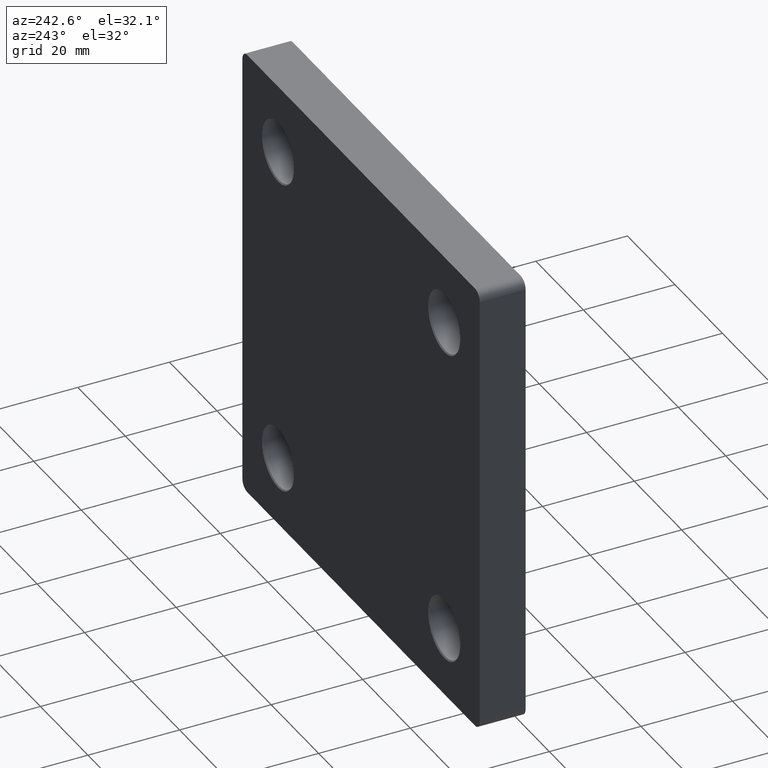
[diagram: clean part render]
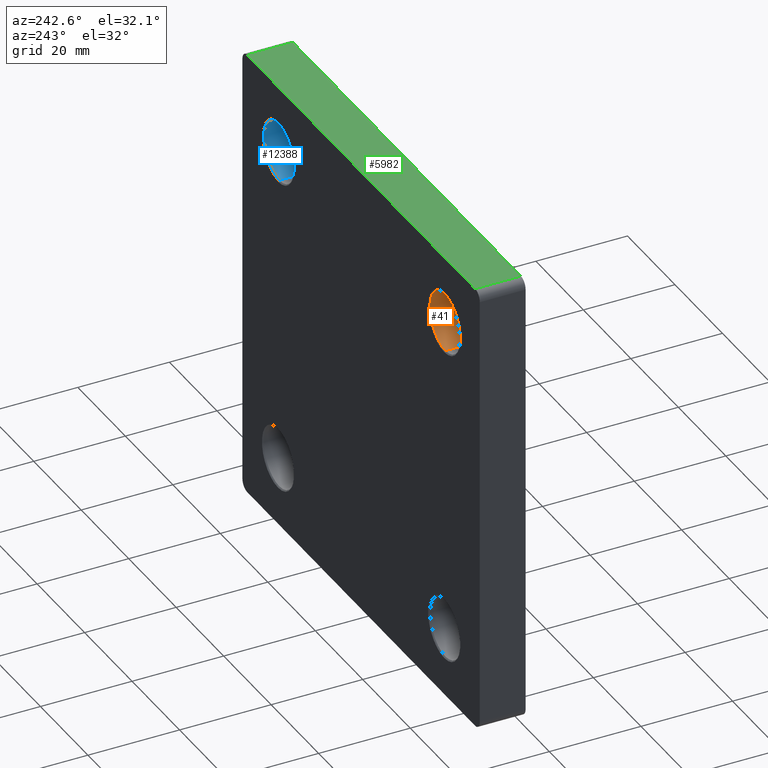
[diagram: same view with three faces highlighted in distinct colors, each labeled with its STEP entity id]
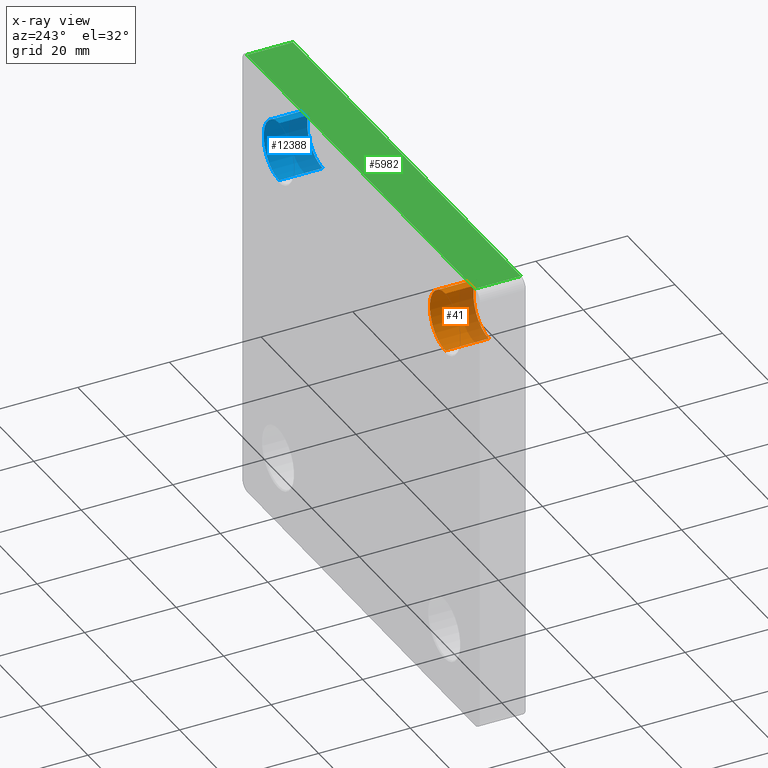
[diagram: x-ray of the same camera — body ghosted, the three highlighted faces saturated]
A machine part, auxiliary view with three faces highlighted in distinct colors.
The next image is the same camera in x-ray (body ghosted, the three faces saturated) — at least one of them is partly hidden behind the body in this view.
Their STEP definitions:

[orange] entity #41 — the highlighted cylindrical surface (edge-blend (fillet) strip) has radius 6.5 mm, axis along (-0, 1, -0).
#41 = ADVANCED_FACE ( 'NONE', ( #11231 ), #10542, .F. ) ;
#104 = DIRECTION ( 'NONE',  ( 0.000000000000000000, 0.000000000000000000, 1.000000000000000000 ) ) ;
#168 = DIRECTION ( 'NONE',  ( 0.000000000000000000, 0.000000000000000000, 1.000000000000000000 ) ) ;
#371 = VECTOR ( 'NONE', #12087, 1000.000000000000000 ) ;
#849 = CARTESIAN_POINT ( 'NONE',  ( -35.00000000000000000, 9.750000000000010658, 28.50000000000000355 ) ) ;
#955 = EDGE_CURVE ( 'NONE', #9684, #6740, #7457, .T. ) ;
#957 = AXIS2_PLACEMENT_3D ( 'NONE', #4050, #13995, #104 ) ;
#2308 = CIRCLE ( 'NONE', #5359, 6.499999999999999112 ) ;
#2424 = AXIS2_PLACEMENT_3D ( 'NONE', #11998, #4344, #4386 ) ;
#4050 = CARTESIAN_POINT ( 'NONE',  ( -35.00000000000000000, 0.000000000000000000, 35.00000000000000000 ) ) ;
#4344 = DIRECTION ( 'NONE',  ( 0.000000000000000000, 1.000000000000000000, 0.000000000000000000 ) ) ;
#4386 = DIRECTION ( 'NONE',  ( 0.000000000000000000, 0.000000000000000000, 1.000000000000000000 ) ) ;
#4779 = EDGE_CURVE ( 'NONE', #6498, #10920, #2308, .T. ) ;
#5051 = EDGE_CURVE ( 'NONE', #6498, #6740, #12167, .T. ) ;
#5159 = DIRECTION ( 'NONE',  ( -0.000000000000000000, 1.000000000000000000, -0.000000000000000000 ) ) ;
#5359 = AXIS2_PLACEMENT_3D ( 'NONE', #6753, #9826, #168 ) ;
#5623 = CARTESIAN_POINT ( 'NONE',  ( -35.00000000000000000, 9.750000000000010658, 41.50000000000000000 ) ) ;
#6401 = VECTOR ( 'NONE', #5159, 1000.000000000000000 ) ;
#6498 = VERTEX_POINT ( 'NONE', #13114 ) ;
#6556 = CARTESIAN_POINT ( 'NONE',  ( -35.00000000000000000, 0.000000000000000000, 41.50000000000000000 ) ) ;
#6740 = VERTEX_POINT ( 'NONE', #849 ) ;
#6753 = CARTESIAN_POINT ( 'NONE',  ( -35.00000000000000000, 0.2499999999999854838, 35.00000000000000000 ) ) ;
#7457 = CIRCLE ( 'NONE', #2424, 6.499999999999999112 ) ;
#8233 = ORIENTED_EDGE ( 'NONE', *, *, #5051, .F. ) ;
#8263 = EDGE_CURVE ( 'NONE', #10920, #9684, #10406, .T. ) ;
#8383 = CARTESIAN_POINT ( 'NONE',  ( -35.00000000000000000, 0.000000000000000000, 28.50000000000000355 ) ) ;
#9011 = EDGE_LOOP ( 'NONE', ( #8233, #9645, #12482, #11327 ) ) ;
#9645 = ORIENTED_EDGE ( 'NONE', *, *, #4779, .T. ) ;
#9684 = VERTEX_POINT ( 'NONE', #5623 ) ;
#9826 = DIRECTION ( 'NONE',  ( -0.000000000000000000, -1.000000000000000000, -0.000000000000000000 ) ) ;
#10270 = CARTESIAN_POINT ( 'NONE',  ( -35.00000000000000000, 0.2499999999999854838, 41.50000000000000000 ) ) ;
#10406 = LINE ( 'NONE', #6556, #371 ) ;
#10542 = CYLINDRICAL_SURFACE ( 'NONE', #957, 6.499999999999999112 ) ;
#10920 = VERTEX_POINT ( 'NONE', #10270 ) ;
#11231 = FACE_OUTER_BOUND ( 'NONE', #9011, .T. ) ;
#11327 = ORIENTED_EDGE ( 'NONE', *, *, #955, .T. ) ;
#11998 = CARTESIAN_POINT ( 'NONE',  ( -35.00000000000000000, 9.750000000000010658, 35.00000000000000000 ) ) ;
#12087 = DIRECTION ( 'NONE',  ( -0.000000000000000000, 1.000000000000000000, -0.000000000000000000 ) ) ;
#12167 = LINE ( 'NONE', #8383, #6401 ) ;
#12482 = ORIENTED_EDGE ( 'NONE', *, *, #8263, .T. ) ;
#13114 = CARTESIAN_POINT ( 'NONE',  ( -35.00000000000000000, 0.2499999999999854838, 28.50000000000000355 ) ) ;
#13995 = DIRECTION ( 'NONE',  ( -0.000000000000000000, 1.000000000000000000, -0.000000000000000000 ) ) ;

[blue] entity #12388 — the highlighted cylindrical surface (edge-blend (fillet) strip) has radius 6.5 mm, axis along (-0, 1, -0).
#105 = FACE_OUTER_BOUND ( 'NONE', #747, .T. ) ;
#135 = CIRCLE ( 'NONE', #12557, 6.499999999999999112 ) ;
#178 = CARTESIAN_POINT ( 'NONE',  ( 35.00000000000000000, 0.2499999999999854838, 41.50000000000000000 ) ) ;
#747 = EDGE_LOOP ( 'NONE', ( #4492, #4060, #2662, #10585 ) ) ;
#1208 = DIRECTION ( 'NONE',  ( 0.000000000000000000, 0.000000000000000000, 1.000000000000000000 ) ) ;
#1461 = DIRECTION ( 'NONE',  ( -0.000000000000000000, 1.000000000000000000, -0.000000000000000000 ) ) ;
#2483 = EDGE_CURVE ( 'NONE', #11485, #2787, #4729, .T. ) ;
#2662 = ORIENTED_EDGE ( 'NONE', *, *, #3304, .T. ) ;
#2787 = VERTEX_POINT ( 'NONE', #178 ) ;
#3268 = CARTESIAN_POINT ( 'NONE',  ( 35.00000000000000000, 0.000000000000000000, 28.50000000000000355 ) ) ;
#3295 = CARTESIAN_POINT ( 'NONE',  ( 35.00000000000000000, 9.750000000000010658, 28.50000000000000355 ) ) ;
#3304 = EDGE_CURVE ( 'NONE', #2787, #11474, #5579, .T. ) ;
#3961 = LINE ( 'NONE', #3268, #9565 ) ;
#4060 = ORIENTED_EDGE ( 'NONE', *, *, #2483, .T. ) ;
#4492 = ORIENTED_EDGE ( 'NONE', *, *, #7056, .F. ) ;
#4556 = CARTESIAN_POINT ( 'NONE',  ( 35.00000000000000000, 9.750000000000010658, 41.50000000000000000 ) ) ;
#4597 = DIRECTION ( 'NONE',  ( -0.000000000000000000, 1.000000000000000000, -0.000000000000000000 ) ) ;
#4729 = CIRCLE ( 'NONE', #11267, 6.499999999999999112 ) ;
#5099 = VERTEX_POINT ( 'NONE', #3295 ) ;
#5542 = DIRECTION ( 'NONE',  ( -0.000000000000000000, -1.000000000000000000, -0.000000000000000000 ) ) ;
#5579 = LINE ( 'NONE', #12093, #10318 ) ;
#6421 = DIRECTION ( 'NONE',  ( 0.000000000000000000, 1.000000000000000000, 0.000000000000000000 ) ) ;
#6907 = CYLINDRICAL_SURFACE ( 'NONE', #8525, 6.499999999999999112 ) ;
#7056 = EDGE_CURVE ( 'NONE', #11485, #5099, #3961, .T. ) ;
#7751 = CARTESIAN_POINT ( 'NONE',  ( 35.00000000000000000, 0.2499999999999854838, 35.00000000000000000 ) ) ;
#7781 = DIRECTION ( 'NONE',  ( -0.000000000000000000, 1.000000000000000000, -0.000000000000000000 ) ) ;
#8253 = DIRECTION ( 'NONE',  ( 0.000000000000000000, 0.000000000000000000, 1.000000000000000000 ) ) ;
#8525 = AXIS2_PLACEMENT_3D ( 'NONE', #13335, #1461, #8253 ) ;
#8635 = CARTESIAN_POINT ( 'NONE',  ( 35.00000000000000000, 9.750000000000010658, 35.00000000000000000 ) ) ;
#9565 = VECTOR ( 'NONE', #7781, 1000.000000000000000 ) ;
#9678 = DIRECTION ( 'NONE',  ( 0.000000000000000000, 0.000000000000000000, 1.000000000000000000 ) ) ;
#10078 = CARTESIAN_POINT ( 'NONE',  ( 35.00000000000000000, 0.2499999999999854838, 28.50000000000000355 ) ) ;
#10318 = VECTOR ( 'NONE', #4597, 1000.000000000000000 ) ;
#10585 = ORIENTED_EDGE ( 'NONE', *, *, #12128, .T. ) ;
#11267 = AXIS2_PLACEMENT_3D ( 'NONE', #7751, #5542, #1208 ) ;
#11474 = VERTEX_POINT ( 'NONE', #4556 ) ;
#11485 = VERTEX_POINT ( 'NONE', #10078 ) ;
#12093 = CARTESIAN_POINT ( 'NONE',  ( 35.00000000000000000, 0.000000000000000000, 41.50000000000000000 ) ) ;
#12128 = EDGE_CURVE ( 'NONE', #11474, #5099, #135, .T. ) ;
#12388 = ADVANCED_FACE ( 'NONE', ( #105 ), #6907, .F. ) ;
#12557 = AXIS2_PLACEMENT_3D ( 'NONE', #8635, #6421, #9678 ) ;
#13335 = CARTESIAN_POINT ( 'NONE',  ( 35.00000000000000000, 0.000000000000000000, 35.00000000000000000 ) ) ;

[green] entity #5982 — the highlighted planar face has unit normal (0, 0, -1).
#1164 = VECTOR ( 'NONE', #13010, 1000.000000000000000 ) ;
#1337 = DIRECTION ( 'NONE',  ( 0.000000000000000000, -1.000000000000000000, 0.000000000000000000 ) ) ;
#1558 = LINE ( 'NONE', #10983, #7850 ) ;
#2127 = EDGE_CURVE ( 'NONE', #3451, #2915, #7444, .T. ) ;
#2183 = CARTESIAN_POINT ( 'NONE',  ( -47.99999999999998579, 0.000000000000000000, 50.00000000000000711 ) ) ;
#2389 = CARTESIAN_POINT ( 'NONE',  ( -47.99999999999998579, 10.00000000000000000, 50.00000000000000711 ) ) ;
#2854 = ORIENTED_EDGE ( 'NONE', *, *, #2127, .T. ) ;
#2864 = VECTOR ( 'NONE', #1337, 1000.000000000000000 ) ;
#2915 = VERTEX_POINT ( 'NONE', #13480 ) ;
#3126 = PLANE ( 'NONE',  #11628 ) ;
#3451 = VERTEX_POINT ( 'NONE', #10335 ) ;
#3569 = CARTESIAN_POINT ( 'NONE',  ( -49.99999999999998579, 10.00000000000000000, 50.00000000000000711 ) ) ;
#3636 = FACE_OUTER_BOUND ( 'NONE', #9887, .T. ) ;
#5089 = DIRECTION ( 'NONE',  ( 0.000000000000000000, 0.000000000000000000, -1.000000000000000000 ) ) ;
#5982 = ADVANCED_FACE ( 'NONE', ( #3636 ), #3126, .F. ) ;
#6507 = ORIENTED_EDGE ( 'NONE', *, *, #10322, .F. ) ;
#6580 = VERTEX_POINT ( 'NONE', #12265 ) ;
#7444 = LINE ( 'NONE', #9637, #1164 ) ;
#7835 = VECTOR ( 'NONE', #11139, 1000.000000000000000 ) ;
#7850 = VECTOR ( 'NONE', #13345, 1000.000000000000000 ) ;
#8954 = EDGE_CURVE ( 'NONE', #11354, #3451, #1558, .T. ) ;
#9637 = CARTESIAN_POINT ( 'NONE',  ( 48.00000000000001421, 10.00000000000000000, 50.00000000000000711 ) ) ;
#9887 = EDGE_LOOP ( 'NONE', ( #6507, #13568, #13170, #2854 ) ) ;
#10322 = EDGE_CURVE ( 'NONE', #6580, #2915, #13088, .T. ) ;
#10335 = CARTESIAN_POINT ( 'NONE',  ( 48.00000000000001421, 0.000000000000000000, 50.00000000000000711 ) ) ;
#10983 = CARTESIAN_POINT ( 'NONE',  ( -49.99999999999998579, 0.000000000000000000, 50.00000000000000711 ) ) ;
#11139 = DIRECTION ( 'NONE',  ( 1.000000000000000000, 0.000000000000000000, 0.000000000000000000 ) ) ;
#11354 = VERTEX_POINT ( 'NONE', #2183 ) ;
#11628 = AXIS2_PLACEMENT_3D ( 'NONE', #13635, #5089, #12672 ) ;
#11694 = LINE ( 'NONE', #2389, #2864 ) ;
#11863 = EDGE_CURVE ( 'NONE', #6580, #11354, #11694, .T. ) ;
#12265 = CARTESIAN_POINT ( 'NONE',  ( -47.99999999999998579, 10.00000000000000000, 50.00000000000000711 ) ) ;
#12672 = DIRECTION ( 'NONE',  ( -1.000000000000000000, 0.000000000000000000, -0.000000000000000000 ) ) ;
#13010 = DIRECTION ( 'NONE',  ( -0.000000000000000000, 1.000000000000000000, -0.000000000000000000 ) ) ;
#13088 = LINE ( 'NONE', #3569, #7835 ) ;
#13170 = ORIENTED_EDGE ( 'NONE', *, *, #8954, .T. ) ;
#13345 = DIRECTION ( 'NONE',  ( 1.000000000000000000, 0.000000000000000000, 0.000000000000000000 ) ) ;
#13480 = CARTESIAN_POINT ( 'NONE',  ( 48.00000000000001421, 10.00000000000000000, 50.00000000000000711 ) ) ;
#13568 = ORIENTED_EDGE ( 'NONE', *, *, #11863, .T. ) ;
#13635 = CARTESIAN_POINT ( 'NONE',  ( -49.99999999999998579, 10.00000000000000000, 50.00000000000000711 ) ) ;